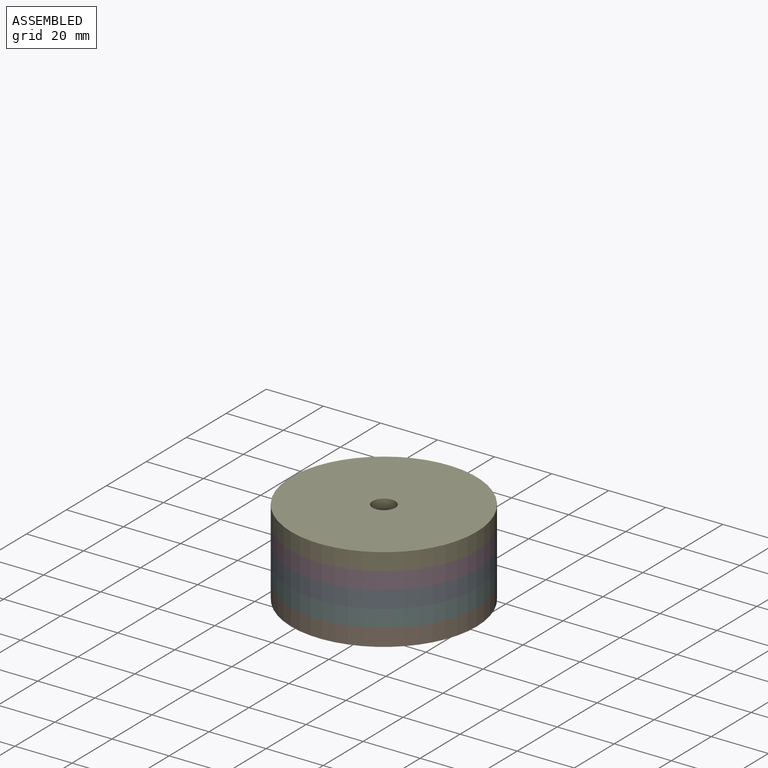
[diagram: assembled view]
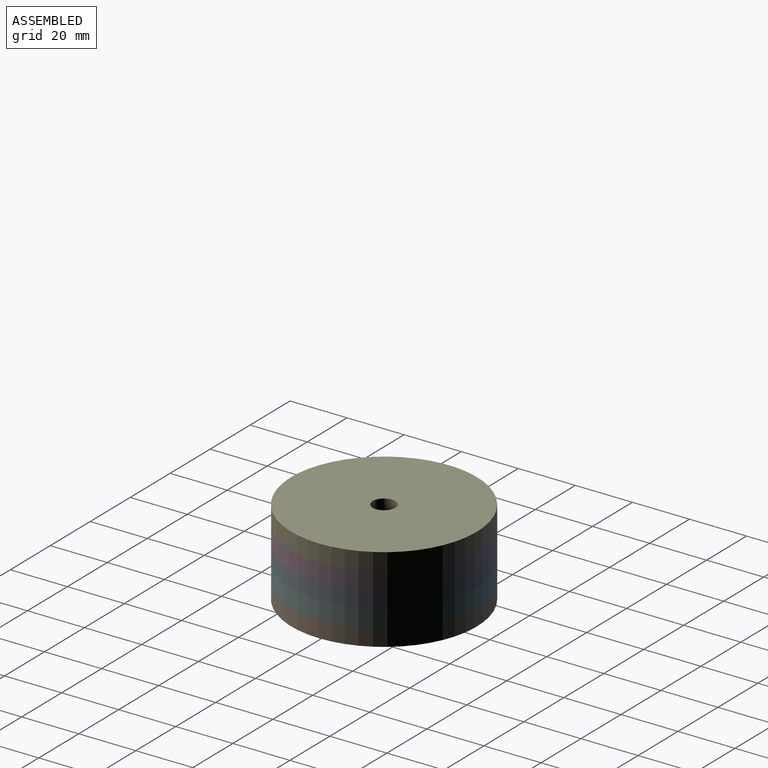
[diagram: assembled view, second angle]
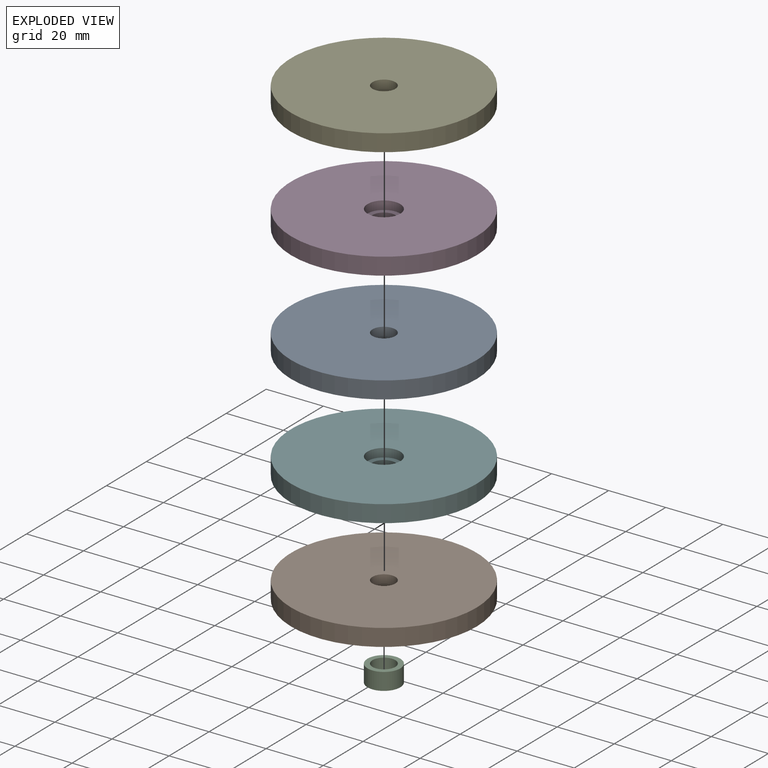
[diagram: exploded view]
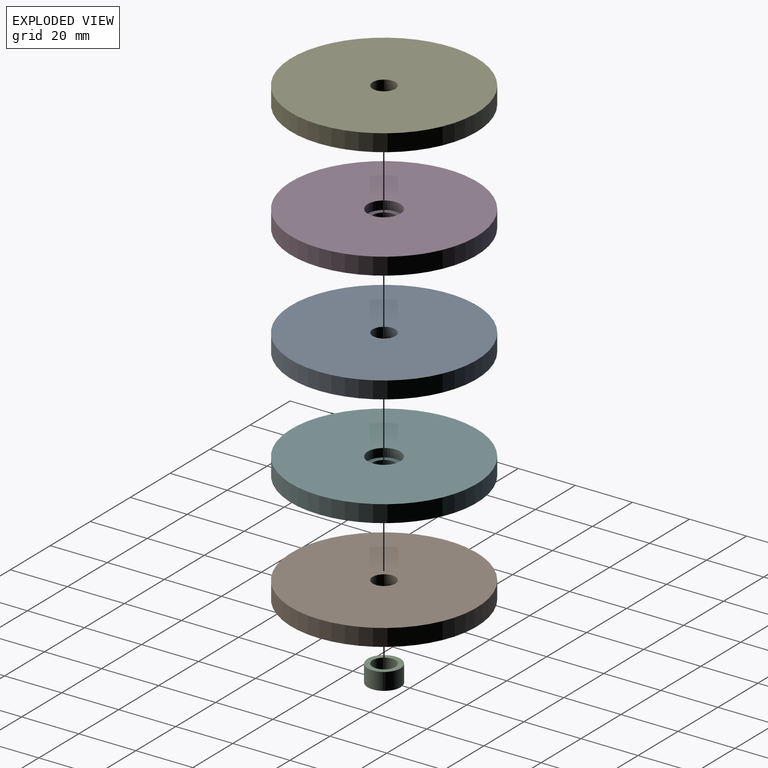
[diagram: exploded view, second angle]
ASSEMBLY  parts=6 mates=5
PART A: 6 faces, bbox 65x65x6 mm
  f0: plane 65x65mm, normal (0,0,1), area 3268mm2, adj f1,f2
  f1: cylinder r=4mm len=8mm, axis (0,0,1), area 75.4mm2, adj f0,f3
  f2: cylinder r=32.5mm len=65mm, axis (0,0,1), area 1225.2mm2, adj f0,f4
  f3: plane 11.5x11.5mm, normal (0,0,-1), area 53.6mm2, adj f1,f5
  f4: plane 65x65mm, normal (0,0,-1), area 3214.4mm2, adj f2,f5
  f5: cylinder r=5.75mm len=11.5mm, axis (0,0,1), area 108.4mm2, adj f3,f4
PART B: same geometry as A
PART C: 4 faces, bbox 11.5x11.5x6 mm
  f0: cylinder r=5.75mm len=11.5mm, axis (0,0,1), area 216.8mm2, adj f1,f2
  f1: plane 11.5x11.5mm, normal (0,0,1), area 53.6mm2, adj f0,f3
  f2: plane 11.5x11.5mm, normal (0,0,-1), area 53.6mm2, adj f0,f3
  f3: cylinder r=4mm len=8mm, axis (0,0,1), area 150.8mm2, adj f1,f2
PART D: same geometry as A
PART E: same geometry as A
PART F: same geometry as A
PLACE A t=(-116.26,-46.37,-136.17)mm
PLACE B t=(-116.26,-46.37,-148.17)mm
PLACE C rot(axis=(1,0,0),180deg) t=(-116.26,-46.37,-145.17)mm
PLACE D rot(axis=(1,0,0),180deg) t=(-116.26,-46.37,-124.17)mm
PLACE E t=(-116.26,-46.37,-124.17)mm
PLACE F rot(axis=(1,0,0),180deg) t=(-116.26,-46.37,-136.17)mm
MATE fastened D.f1 <-> E.f1  axis (0,0,1) through (-116.26,-46.37,-124.17)mm
MATE fastened A.f1 <-> D.f1  axis (0,0,1) through (-116.26,-46.37,-130.17)mm
MATE fastened F.f1 <-> A.f1  axis (0,0,1) through (-116.26,-46.37,-136.17)mm
MATE fastened B.f1 <-> F.f1  axis (0,0,1) through (-116.26,-46.37,-142.17)mm
MATE fastened C.f0 <-> B.f1  axis (0,0,1) through (-116.26,-46.37,-145.17)mm
